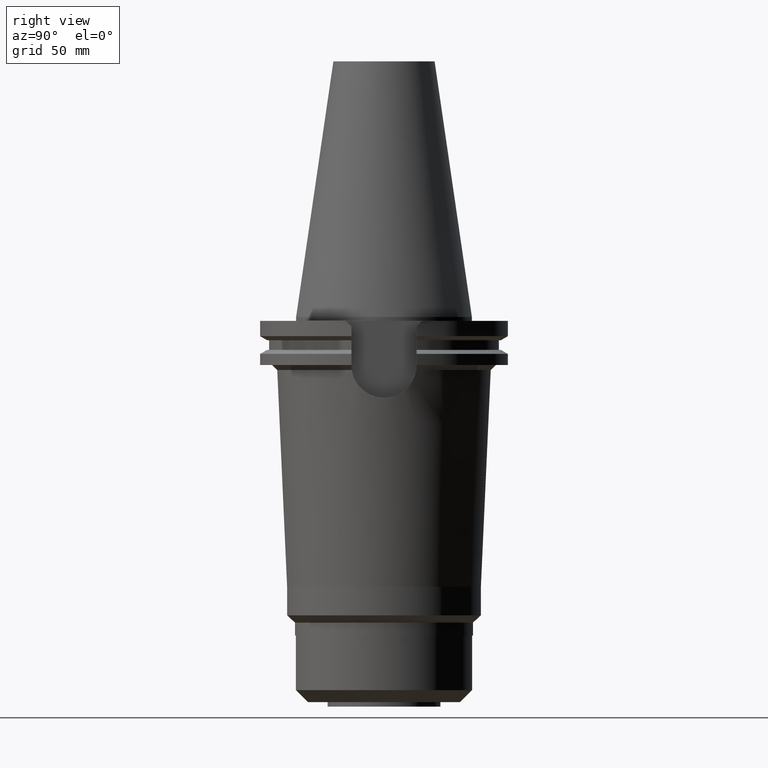
[diagram: clean part render]
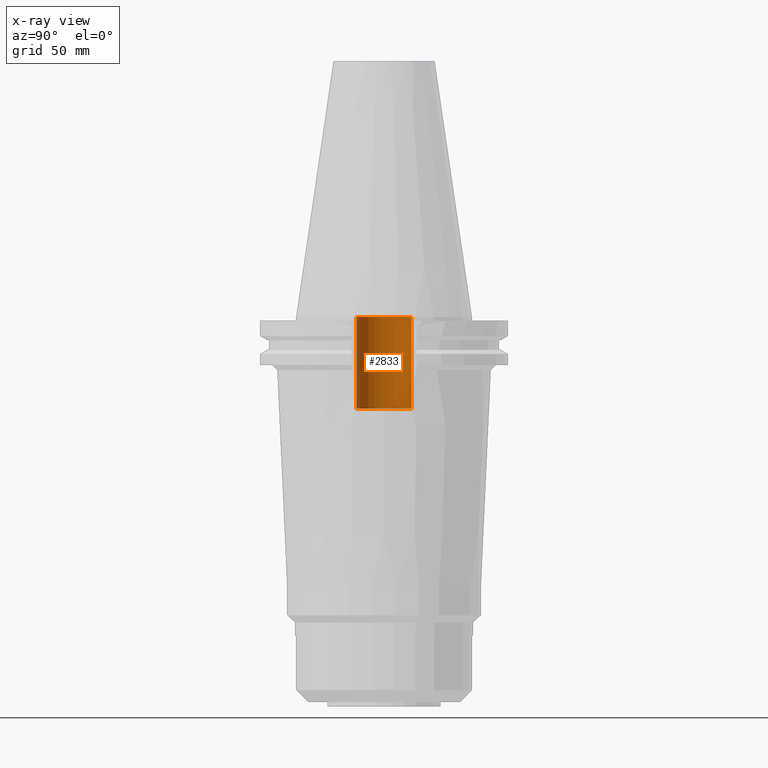
[diagram: x-ray — body ghosted, one internal face saturated and labeled with its STEP entity id]
A machine part, right view, then the same camera in x-ray: the body is ghosted and one INTERNAL B-rep face — a face not visible from any outside direction — is saturated and labeled: STEP entity #2833.
In plain terms, the highlighted cylindrical surface (edge-blend (fillet) strip) has radius 11 mm, axis along (0, 0, -1).
Its self-contained STEP definition (entity closure, byte-faithful):
#1372=CARTESIAN_POINT('',(0.E0,2.625887666732E-14,-3.64E1));
#1373=DIRECTION('',(0.E0,0.E0,-1.E0));
#1374=DIRECTION('',(0.E0,-1.E0,0.E0));
#1375=AXIS2_PLACEMENT_3D('',#1372,#1373,#1374);
#1404=DIRECTION('',(0.E0,0.E0,1.E0));
#1405=VECTOR('',#1404,3.64E1);
#1406=CARTESIAN_POINT('',(0.E0,-1.1E1,-3.64E1));
#1407=LINE('',#1406,#1405);
#1411=CARTESIAN_POINT('',(0.E0,2.625887666732E-14,-5.684341886081E-14));
#1412=DIRECTION('',(0.E0,0.E0,-1.E0));
#1413=DIRECTION('',(0.E0,-1.E0,0.E0));
#1414=AXIS2_PLACEMENT_3D('',#1411,#1412,#1413);
#1419=DIRECTION('',(0.E0,0.E0,1.E0));
#1420=VECTOR('',#1419,3.64E1);
#1421=CARTESIAN_POINT('',(0.E0,1.1E1,-3.64E1));
#1422=LINE('',#1421,#1420);
#1564=CARTESIAN_POINT('',(0.E0,1.1E1,-5.684341886081E-14));
#1565=VERTEX_POINT('',#1564);
#1566=CARTESIAN_POINT('',(0.E0,-1.1E1,-5.684341886081E-14));
#1567=VERTEX_POINT('',#1566);
#1568=CARTESIAN_POINT('',(0.E0,1.1E1,-3.64E1));
#1569=VERTEX_POINT('',#1568);
#1570=CARTESIAN_POINT('',(0.E0,-1.1E1,-3.64E1));
#1571=VERTEX_POINT('',#1570);
#2819=CARTESIAN_POINT('',(0.E0,2.625887666732E-14,1.1442E2));
#2820=DIRECTION('',(0.E0,0.E0,-1.E0));
#2821=DIRECTION('',(0.E0,-1.E0,0.E0));
#2822=AXIS2_PLACEMENT_3D('',#2819,#2820,#2821);
#2823=CYLINDRICAL_SURFACE('',#2822,1.1E1);
#2825=ORIENTED_EDGE('',*,*,#2824,.F.);
#2826=ORIENTED_EDGE('',*,*,#2808,.F.);
#2828=ORIENTED_EDGE('',*,*,#2827,.T.);
#2830=ORIENTED_EDGE('',*,*,#2829,.T.);
#2831=EDGE_LOOP('',(#2825,#2826,#2828,#2830));
#2832=FACE_OUTER_BOUND('',#2831,.F.);
#1376=CIRCLE('',#1375,1.1E1);
#1415=CIRCLE('',#1414,1.1E1);
#2808=EDGE_CURVE('',#1571,#1569,#1376,.T.);
#2824=EDGE_CURVE('',#1569,#1565,#1422,.T.);
#2827=EDGE_CURVE('',#1571,#1567,#1407,.T.);
#2829=EDGE_CURVE('',#1567,#1565,#1415,.T.);
#2833=ADVANCED_FACE('',(#2832),#2823,.F.);